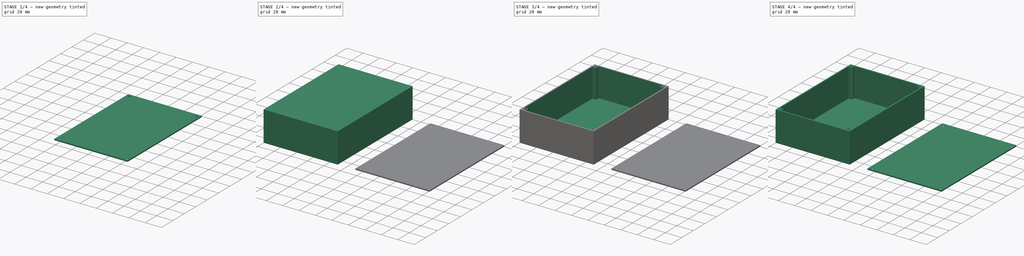
[diagram: build sequence overview — one tinted view per stage of 4, left to right]
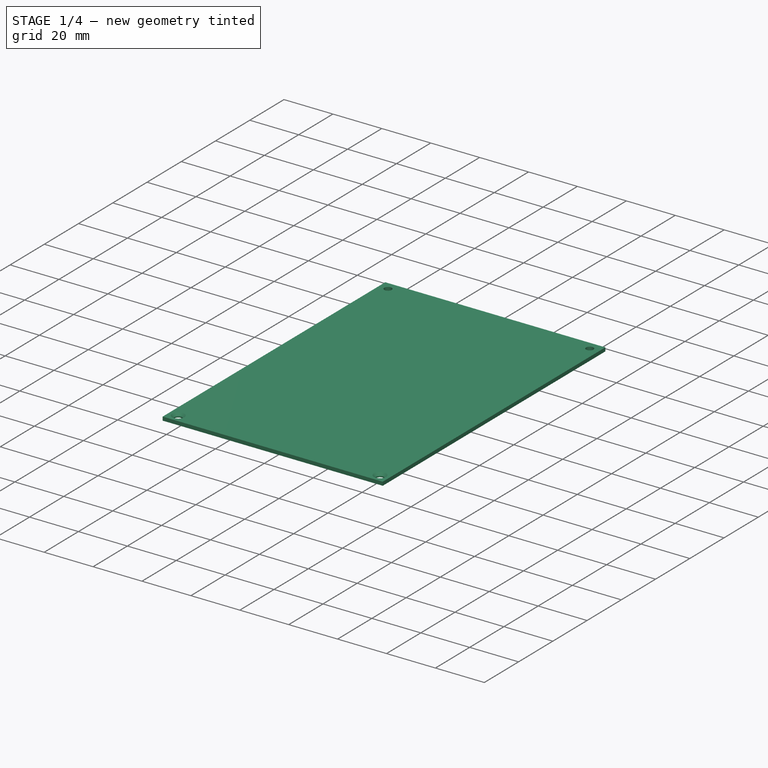
[diagram: stage 1 of 4 — iso view after this stage's code; geometry added in this stage tinted green]
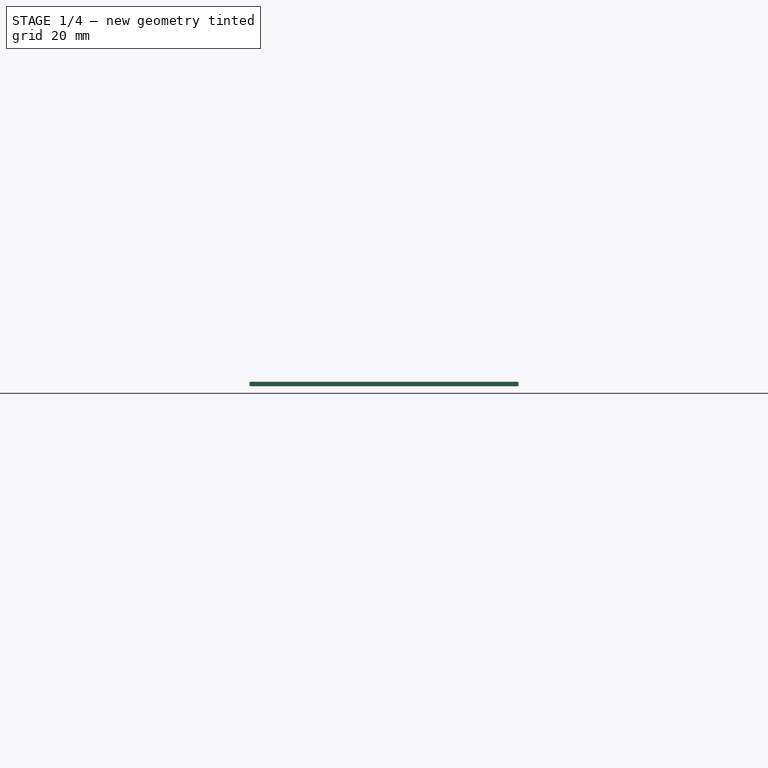
[diagram: stage 1 of 4 — front view after this stage's code; geometry added in this stage tinted green]
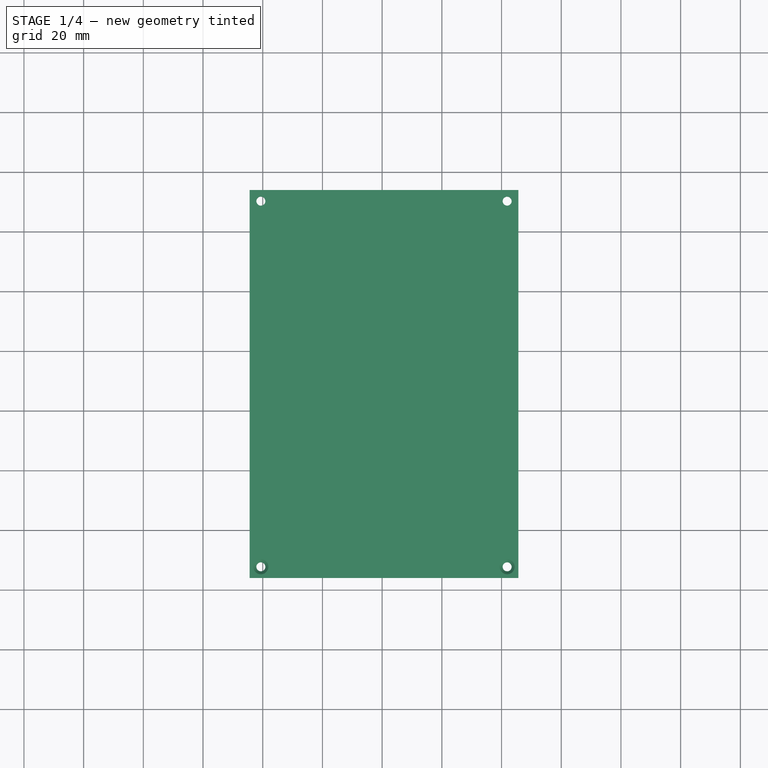
[diagram: stage 1 of 4 — top view after this stage's code; geometry added in this stage tinted green]
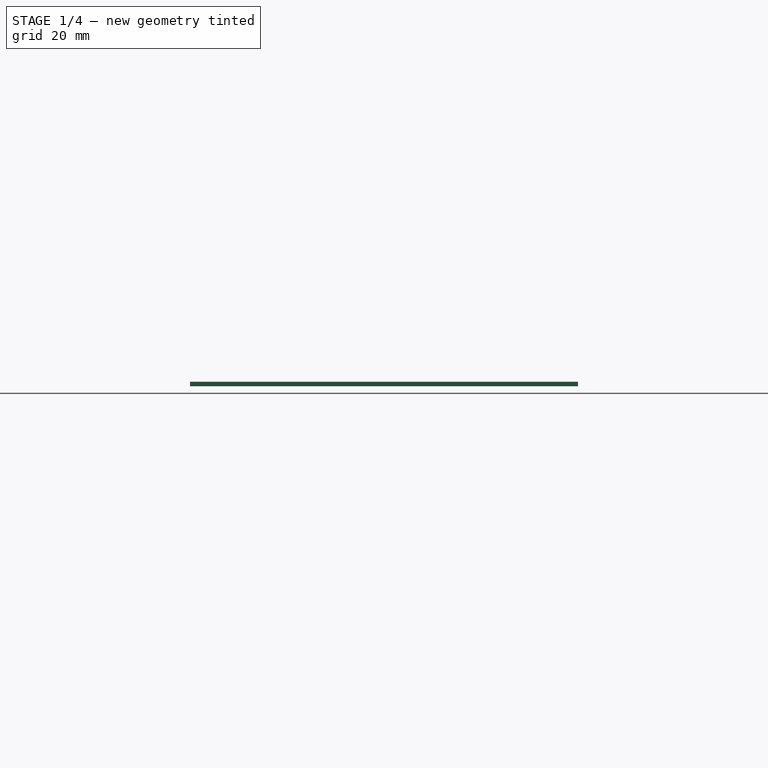
[diagram: stage 1 of 4 — right view after this stage's code; geometry added in this stage tinted green]
FCSTD DOCUMENT  (FreeCAD 0.18R)
Label: parametric.project.box
License: All rights reserved
LicenseURL: http://en.wikipedia.org/wiki/All_rights_reserved
objects: Sketcher::SketchObject×6, PartDesign::Fillet×4, PartDesign::Chamfer×4, PartDesign::Pad×3, PartDesign::Pocket×3, PartDesign::Body×2, Spreadsheet::Sheet×1, App::Part×1
note: 28 computed .brp shape members not serialized (recipe doc carries the construction recipe); baked Part::Feature solids carry a one-line shape summary decoded from their .brp

FEATURE [PartDesign::Body] Body  label="Box"
  Group = -> [Sketch,Pad,Sketch001,Pocket,Sketch002,Pad001,Sketch003,Pocket001,Fillet,Fillet001,Fillet002,Fillet003]
  Origin = -> Origin001
  Tip = -> Fillet003
FEATURE [Sketcher::SketchObject] Sketch004
  MapMode = 5
  Support = -> [XY_Plane002]
  expr: Constraints[9] = params.length
  expr: Constraints[8] = params.width
  sketch-geometry (4):
    g0: LineSegment StartX=75.6227 StartY=34.0285 StartZ=0 EndX=165.623 EndY=34.0285 EndZ=0
    g1: LineSegment StartX=165.623 StartY=34.0285 StartZ=0 EndX=165.623 EndY=-95.9715 EndZ=0
    g2: LineSegment StartX=165.623 StartY=-95.9715 StartZ=0 EndX=75.6227 EndY=-95.9715 EndZ=0
    g3: LineSegment StartX=75.6227 StartY=-95.9715 StartZ=0 EndX=75.6227 EndY=34.0285 EndZ=0
  constraints (10):
    c: Coincident(g0,g1)
    c: Coincident(g1,g2)
    c: Coincident(g2,g3)
    c: Coincident(g3,g0)
    c: Horizontal(g0)
    c: Horizontal(g2)
    c: Vertical(g1)
    c: Vertical(g3)
    c: DistanceX(g2,g2) = 90
    c: DistanceY(g3,g3) = 130
FEATURE [PartDesign::Pad] Pad002
  Length = 1.5
  Length2 = 100
  Profile = -> Sketch004
  Type = 0
  expr: Length = params.body_thickness
FEATURE [Sketcher::SketchObject] Sketch005
  ExternalGeometry = -> [Pad002]
  MapMode = 5
  Placement = pos=(0,0,1.5) rot=(0,0,1;0rad)
  Support = -> [Pad002]
  expr: Constraints[11] = (params.screw_size + params.screw_size * 0.5) / 2 + params.body_thickness
  expr: Constraints[9] = params.screw_size / 2
  expr: Constraints[8] = params.screw_size / 2
  expr: Constraints[7] = (params.screw_size + params.screw_size * 0.5) / 2 + params.body_thickness
  expr: Constraints[6] = (params.screw_size + params.screw_size * 0.5) / 2 + params.body_thickness
  expr: Constraints[4] = (params.screw_size + params.screw_size * 0.5) / 2 + params.body_thickness
  expr: Constraints[3] = params.screw_size / 2
  expr: Constraints[10] = (params.screw_size + params.screw_size * 0.5) / 2 + params.body_thickness
  expr: Constraints[5] = (params.screw_size + params.screw_size * 0.5) / 2 + params.body_thickness
  expr: Constraints[2] = (params.screw_size + params.screw_size * 0.5) / 2 + params.body_thickness
  expr: Constraints[1] = (params.screw_size + params.screw_size * 0.5) / 2 + params.body_thickness
  expr: Constraints[0] = params.screw_size / 2
  sketch-geometry (4):
    g0: Circle CenterX=79.3727 CenterY=30.2785 CenterZ=0 NormalX=0 NormalY=0 NormalZ=1 AngleXU=0 Radius=1.5
    g1: Circle CenterX=79.3727 CenterY=-92.2215 CenterZ=0 NormalX=0 NormalY=0 NormalZ=1 AngleXU=0 Radius=1.5
    g2: Circle CenterX=161.873 CenterY=-92.2215 CenterZ=0 NormalX=0 NormalY=0 NormalZ=1 AngleXU=0 Radius=1.5
    g3: Circle CenterX=161.873 CenterY=30.2785 CenterZ=0 NormalX=0 NormalY=0 NormalZ=1 AngleXU=0 Radius=1.5
  constraints (12):
    c: Radius(g0) = 1.5
    c: DistanceY(g0,g-4) = 3.75
    c: DistanceX(g-4,g0) = 3.75
    c: Radius(g3) = 1.5
    c: DistanceY(g3,g-5) = 3.75
    c: DistanceX(g3,g-5) = 3.75
    c: DistanceX(g-6,g1) = 3.75
    c: DistanceY(g-6,g1) = 3.75
    c: Radius(g1) = 1.5
    c: Radius(g2) = 1.5
    c: DistanceY(g-6,g2) = 3.75
    c: DistanceX(g2,g-6) = 3.75
FEATURE [PartDesign::Pocket] Pocket002
  BaseFeature = -> Pad002
  Length = 1.5
  Length2 = 100
  Profile = -> Sketch005
  Type = 0
  expr: Length = params.body_thickness
FEATURE [PartDesign::Chamfer] Chamfer
  Base = -> Pocket002 [Edge19]
  BaseFeature = -> Pocket002
  Size = 1
FEATURE [PartDesign::Chamfer] Chamfer001
  Base = -> Chamfer [Edge8]
  BaseFeature = -> Chamfer
  Size = 1
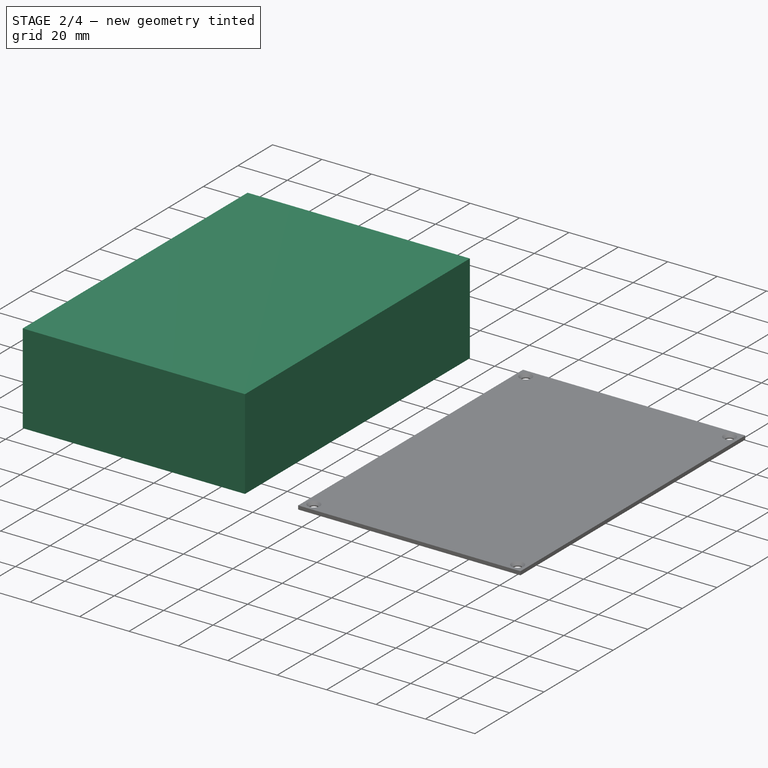
[diagram: stage 2 of 4 — iso view after this stage's code; geometry added in this stage tinted green]
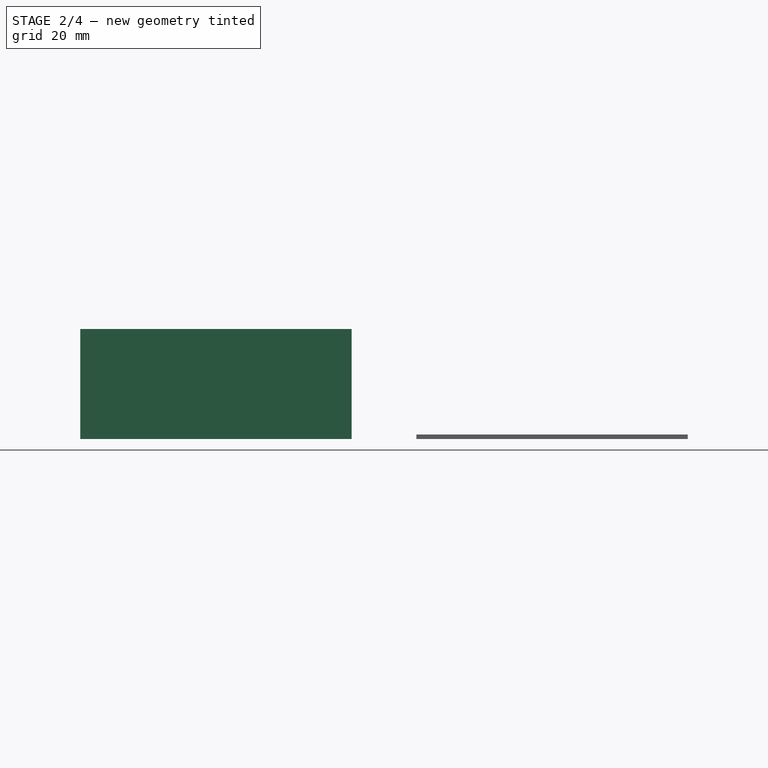
[diagram: stage 2 of 4 — front view after this stage's code; geometry added in this stage tinted green]
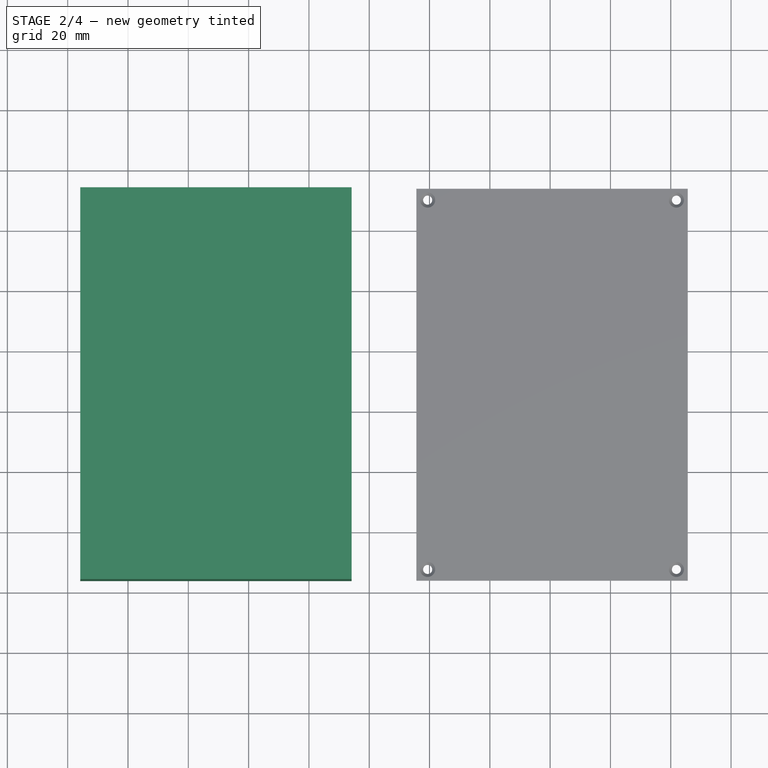
[diagram: stage 2 of 4 — top view after this stage's code; geometry added in this stage tinted green]
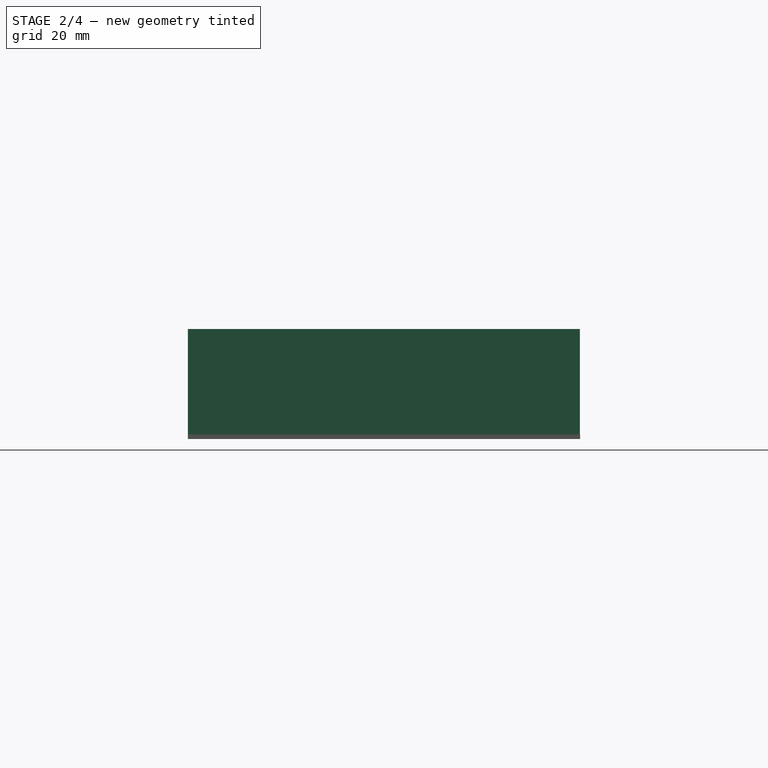
[diagram: stage 2 of 4 — right view after this stage's code; geometry added in this stage tinted green]
FEATURE [Sketcher::SketchObject] Sketch  label="box_footprint"
  MapMode = 5
  Support = -> [XY_Plane001]
  expr: Constraints[9] = params.width
  expr: Constraints[8] = params.length
  sketch-geometry (4):
    g0: LineSegment StartX=-35.8253 StartY=33.9303 StartZ=0 EndX=54.1747 EndY=33.9303 EndZ=0
    g1: LineSegment StartX=54.1747 StartY=33.9303 StartZ=0 EndX=54.1747 EndY=-96.0697 EndZ=0
    g2: LineSegment StartX=54.1747 StartY=-96.0697 StartZ=0 EndX=-35.8253 EndY=-96.0697 EndZ=0
    g3: LineSegment StartX=-35.8253 StartY=-96.0697 StartZ=0 EndX=-35.8253 EndY=33.9303 EndZ=0
  constraints (10):
    c: Coincident(g0,g1)
    c: Coincident(g1,g2)
    c: Coincident(g2,g3)
    c: Coincident(g3,g0)
    c: Horizontal(g0)
    c: Horizontal(g2)
    c: Vertical(g1)
    c: Vertical(g3)
    c: DistanceY(g1,g1) = 130
    c: DistanceX(g0,g0) = 90
FEATURE [Spreadsheet::Sheet] Spreadsheet  label="params"
  cells = A1=body_thickness; B1(body_thickness)=1.5; A2=width; B2(width)=90; A3=length; B3(length)=130; A4=height; B4(height)=35; A5=screw_size; B5(screw_size)=3; A6=screw_length; B6(screw_length)=15
FEATURE [PartDesign::Pad] Pad
  Length = 36.5
  Length2 = 100
  Profile = -> Sketch
  Type = 0
  expr: Length = params.height + params.body_thickness
FEATURE [PartDesign::Chamfer] Chamfer002
  Base = -> Chamfer001 [Edge7]
  BaseFeature = -> Chamfer001
  Size = 1
FEATURE [PartDesign::Chamfer] Chamfer003
  Base = -> Chamfer002 [Edge8]
  BaseFeature = -> Chamfer002
  Size = 1
FEATURE [PartDesign::Body] Body001  label="Lid"
  Group = -> [Sketch004,Pad002,Sketch005,Pocket002,Chamfer,Chamfer001,Chamfer002,Chamfer003]
  Origin = -> Origin002
  Tip = -> Chamfer003
FEATURE [App::Part] Part
  Group = -> [Body,Body001]
  Origin = -> Origin
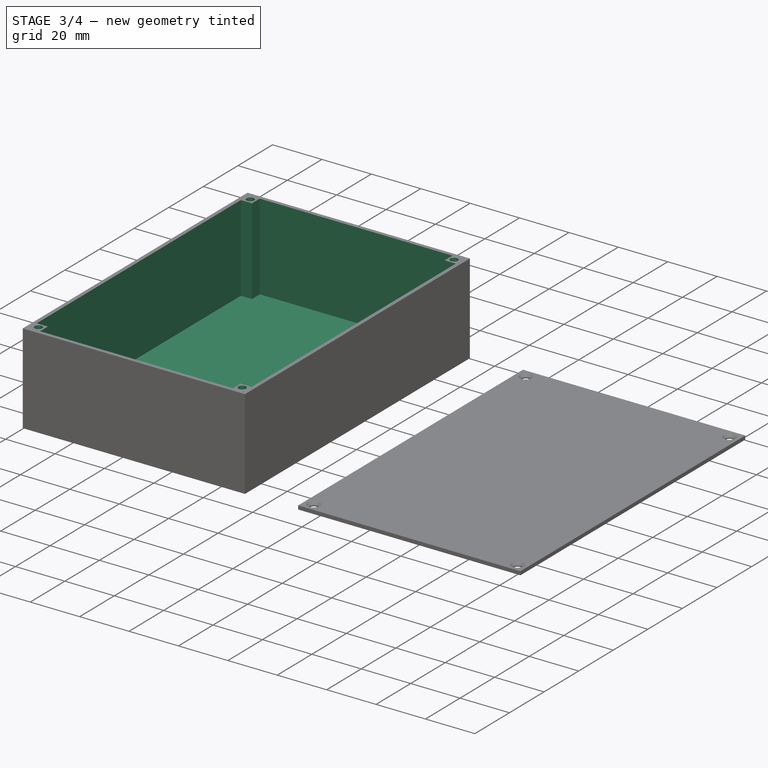
[diagram: stage 3 of 4 — iso view after this stage's code; geometry added in this stage tinted green]
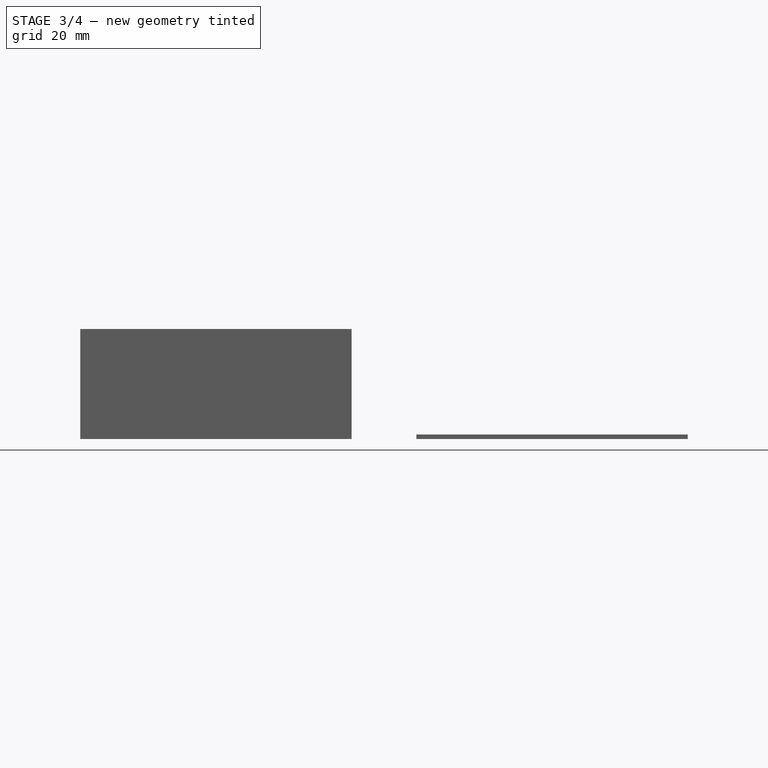
[diagram: stage 3 of 4 — front view after this stage's code; geometry added in this stage tinted green]
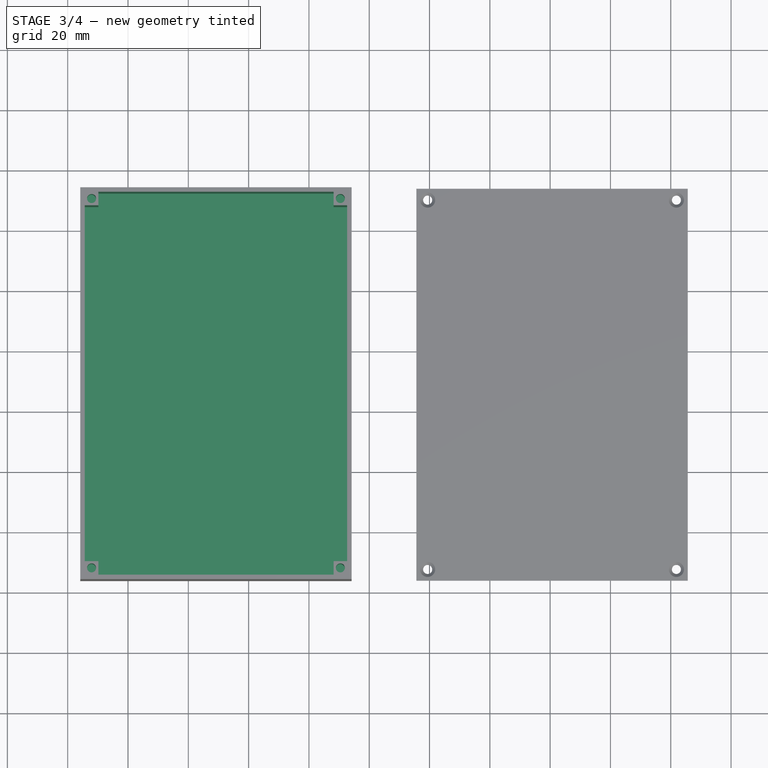
[diagram: stage 3 of 4 — top view after this stage's code; geometry added in this stage tinted green]
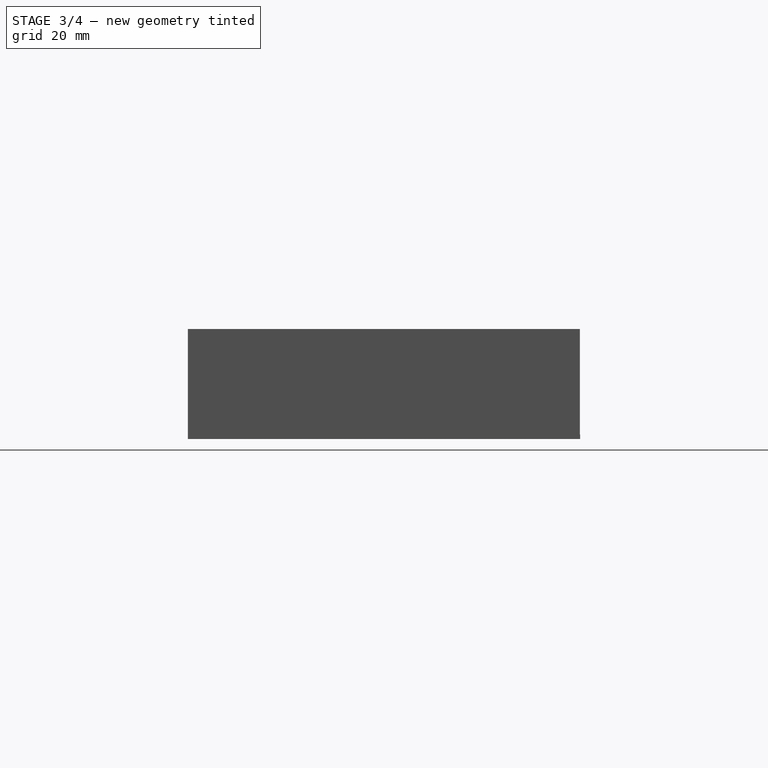
[diagram: stage 3 of 4 — right view after this stage's code; geometry added in this stage tinted green]
FEATURE [Sketcher::SketchObject] Sketch001
  ExternalGeometry = -> [Pad]
  MapMode = 5
  Placement = pos=(0,0,36.5) rot=(0,0,1;0rad)
  Support = -> [Pad]
  expr: Constraints[11] = params.body_thickness
  expr: Constraints[10] = params.body_thickness
  expr: Constraints[9] = params.body_thickness
  expr: Constraints[8] = params.body_thickness
  sketch-geometry (4):
    g0: LineSegment StartX=-34.3253 StartY=32.4303 StartZ=0 EndX=52.6747 EndY=32.4303 EndZ=0
    g1: LineSegment StartX=52.6747 StartY=32.4303 StartZ=0 EndX=52.6747 EndY=-94.5697 EndZ=0
    g2: LineSegment StartX=52.6747 StartY=-94.5697 StartZ=0 EndX=-34.3253 EndY=-94.5697 EndZ=0
    g3: LineSegment StartX=-34.3253 StartY=-94.5697 StartZ=0 EndX=-34.3253 EndY=32.4303 EndZ=0
  constraints (12):
    c: Coincident(g0,g1)
    c: Coincident(g1,g2)
    c: Coincident(g2,g3)
    c: Coincident(g3,g0)
    c: Horizontal(g0)
    c: Horizontal(g2)
    c: Vertical(g1)
    c: Vertical(g3)
    c: DistanceX(g1,g-6) = 1.5
    c: DistanceY(g-6,g1) = 1.5
    c: DistanceX(g-4,g0) = 1.5
    c: DistanceY(g0,g-4) = 1.5
FEATURE [PartDesign::Pocket] Pocket
  BaseFeature = -> Pad
  Length = 35
  Length2 = 100
  Profile = -> Sketch001
  Type = 0
  expr: Length = params.height
FEATURE [Sketcher::SketchObject] Sketch002
  ExternalGeometry = -> [Pocket]
  MapMode = 5
  Placement = pos=(0,0,1.5) rot=(0,0,1;0rad)
  Support = -> [Pocket]
  expr: Constraints[47] = params.body_thickness
  expr: Constraints[46] = params.body_thickness
  expr: Constraints[43] = params.body_thickness
  expr: Constraints[42] = params.screw_size + params.screw_size * 0.5
  expr: Constraints[41] = params.screw_size + params.screw_size * 0.5
  expr: Constraints[22] = params.screw_size + params.screw_size * 0.5
  expr: Constraints[9] = params.body_thickness
  expr: Constraints[23] = params.screw_size + params.screw_size * 0.5
  expr: Constraints[21] = params.body_thickness
  expr: Constraints[44] = params.body_thickness
  expr: Constraints[8] = params.body_thickness
  expr: Constraints[45] = params.screw_size + params.screw_size * 0.5
  expr: Constraints[20] = params.body_thickness
  expr: Constraints[11] = params.screw_size + params.screw_size * 0.5
  expr: Constraints[10] = params.screw_size + params.screw_size * 0.5
  expr: Constraints[40] = params.screw_size + params.screw_size * 0.5
  sketch-geometry (16):
    g0: LineSegment StartX=-29.8253 StartY=-94.5697 StartZ=0 EndX=-34.3253 EndY=-94.5697 EndZ=0
    g1: LineSegment StartX=-34.3253 StartY=-94.5697 StartZ=0 EndX=-34.3253 EndY=-90.0697 EndZ=0
    g2: LineSegment StartX=-34.3253 StartY=-90.0697 StartZ=0 EndX=-29.8253 EndY=-90.0697 EndZ=0
    g3: LineSegment StartX=-29.8253 StartY=-90.0697 StartZ=0 EndX=-29.8253 EndY=-94.5697 EndZ=0
    g4: LineSegment StartX=48.1747 StartY=-90.0697 StartZ=0 EndX=52.6747 EndY=-90.0697 EndZ=0
    g5: LineSegment StartX=52.6747 StartY=-90.0697 StartZ=0 EndX=52.6747 EndY=-94.5697 EndZ=0
    g6: LineSegment StartX=52.6747 StartY=-94.5697 StartZ=0 EndX=48.1747 EndY=-94.5697 EndZ=0
    g7: LineSegment StartX=48.1747 StartY=-94.5697 StartZ=0 EndX=48.1747 EndY=-90.0697 EndZ=0
    g8: LineSegment StartX=48.1747 StartY=32.4303 StartZ=0 EndX=52.6747 EndY=32.4303 EndZ=0
    g9: LineSegment StartX=52.6747 StartY=32.4303 StartZ=0 EndX=52.6747 EndY=27.9303 EndZ=0
    g10: LineSegment StartX=52.6747 StartY=27.9303 StartZ=0 EndX=48.1747 EndY=27.9303 EndZ=0
    g11: LineSegment StartX=48.1747 StartY=27.9303 StartZ=0 EndX=48.1747 EndY=32.4303 EndZ=0
    g12: LineSegment StartX=-34.3253 StartY=32.4303 StartZ=0 EndX=-29.8253 EndY=32.4303 EndZ=0
    g13: LineSegment StartX=-29.8253 StartY=32.4303 StartZ=0 EndX=-29.8253 EndY=27.9303 EndZ=0
    g14: LineSegment StartX=-29.8253 StartY=27.9303 StartZ=0 EndX=-34.3253 EndY=27.9303 EndZ=0
    g15: LineSegment StartX=-34.3253 StartY=27.9303 StartZ=0 EndX=-34.3253 EndY=32.4303 EndZ=0
  constraints (48):
    c: Coincident(g0,g1)
    c: Coincident(g1,g2)
    c: Coincident(g2,g3)
    c: Coincident(g3,g0)
    c: Horizontal(g0)
    c: Horizontal(g2)
    c: Vertical(g1)
    c: Vertical(g3)
    c: DistanceX(g-6,g0) = 1.5
    c: DistanceY(g-6,g0) = 1.5
    c: DistanceY(g3,g3) = 4.5
    c: DistanceX(g2,g2) = 4.5
    c: Coincident(g4,g5)
    c: Coincident(g5,g6)
    c: Coincident(g6,g7)
    c: Coincident(g7,g4)
    c: Horizontal(g4)
    c: Horizontal(g6)
    c: Vertical(g5)
    c: Vertical(g7)
    c: DistanceX(g5,g-6) = 1.5
    c: DistanceY(g-6,g5) = 1.5
    c: DistanceY(g7,g7) = 4.5
    c: DistanceX(g4,g4) = 4.5
    c: Coincident(g8,g9)
    c: Coincident(g9,g10)
    c: Coincident(g10,g11)
    c: Coincident(g11,g8)
    c: Horizontal(g8)
    c: Horizontal(g10)
    c: Vertical(g9)
    c: Vertical(g11)
    c: Coincident(g12,g13)
    c: Coincident(g13,g14)
    c: Coincident(g14,g15)
    c: Coincident(g15,g12)
    c: Horizontal(g12)
    c: Horizontal(g14)
    c: Vertical(g13)
    c: Vertical(g15)
    c: DistanceY(g11,g11) = 4.5
    c: DistanceX(g14,g14) = 4.5
    c: DistanceY(g13,g13) = 4.5
    c: DistanceX(g-4,g12) = 1.5
    c: DistanceY(g12,g-4) = 1.5
    c: DistanceX(g10,g10) = 4.5
    c: DistanceY(g8,g-5) = 1.5
    c: DistanceX(g8,g-5) = 1.5
FEATURE [PartDesign::Pad] Pad001
  BaseFeature = -> Pocket
  Length = 35
  Length2 = 100
  Profile = -> Sketch002
  Type = 0
  expr: Length = params.height
FEATURE [Sketcher::SketchObject] Sketch003
  ExternalGeometry = -> [Pad001]
  MapMode = 5
  Placement = pos=(0,0,36.5) rot=(0,0,1;0rad)
  Support = -> [Pad001]
  expr: Constraints[11] = (params.screw_size + params.screw_size * 0.5) / 2
  expr: Constraints[9] = params.screw_size / 2
  expr: Constraints[8] = params.screw_size / 2
  expr: Constraints[7] = (params.screw_size + params.screw_size * 0.5) / 2
  expr: Constraints[6] = (params.screw_size + params.screw_size * 0.5) / 2
  expr: Constraints[4] = (params.screw_size + params.screw_size * 0.5) / 2
  expr: Constraints[3] = params.screw_size / 2
  expr: Constraints[10] = (params.screw_size + params.screw_size * 0.5) / 2
  expr: Constraints[5] = (params.screw_size + params.screw_size * 0.5) / 2
  expr: Constraints[2] = (params.screw_size + params.screw_size * 0.5) / 2
  expr: Constraints[1] = (params.screw_size + params.screw_size * 0.5) / 2
  expr: Constraints[0] = params.screw_size / 2
  sketch-geometry (4):
    g0: Circle CenterX=50.4247 CenterY=30.1803 CenterZ=0 NormalX=0 NormalY=0 NormalZ=1 AngleXU=0 Radius=1.5
    g1: Circle CenterX=-32.0753 CenterY=30.1803 CenterZ=0 NormalX=0 NormalY=0 NormalZ=1 AngleXU=0 Radius=1.5
    g2: Circle CenterX=-32.0753 CenterY=-92.3197 CenterZ=0 NormalX=0 NormalY=0 NormalZ=1 AngleXU=0 Radius=1.5
    g3: Circle CenterX=50.4247 CenterY=-92.3197 CenterZ=0 NormalX=0 NormalY=0 NormalZ=1 AngleXU=0 Radius=1.5
  constraints (12):
    c: Radius(g0) = 1.5
    c: DistanceY(g0,g-6) = 2.25
    c: DistanceX(g0,g-6) = 2.25
    c: Radius(g1) = 1.5
    c: DistanceX(g-10,g1) = 2.25
    c: DistanceY(g1,g-10) = 2.25
    c: DistanceX(g3,g-18) = 2.25
    c: DistanceY(g-18,g3) = 2.25
    c: Radius(g3) = 1.5
    c: Radius(g2) = 1.5
    c: DistanceX(g-13,g2) = 2.25
    c: DistanceY(g-13,g2) = 2.25
FEATURE [PartDesign::Pocket] Pocket001
  BaseFeature = -> Pad001
  Length = 15
  Length2 = 100
  Profile = -> Sketch003
  Type = 0
  expr: Length = params.screw_length
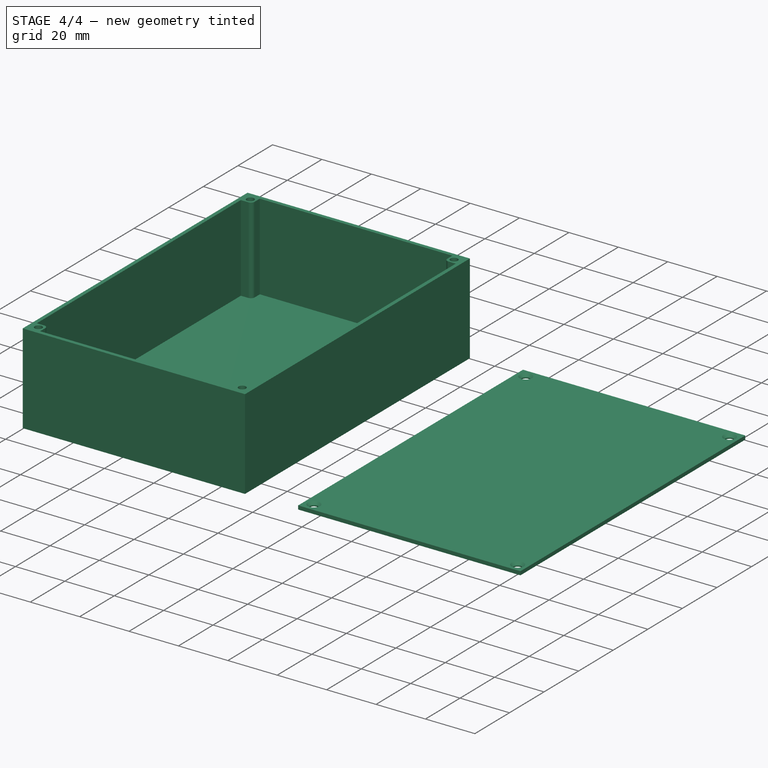
[diagram: stage 4 of 4 — iso view after this stage's code; geometry added in this stage tinted green]
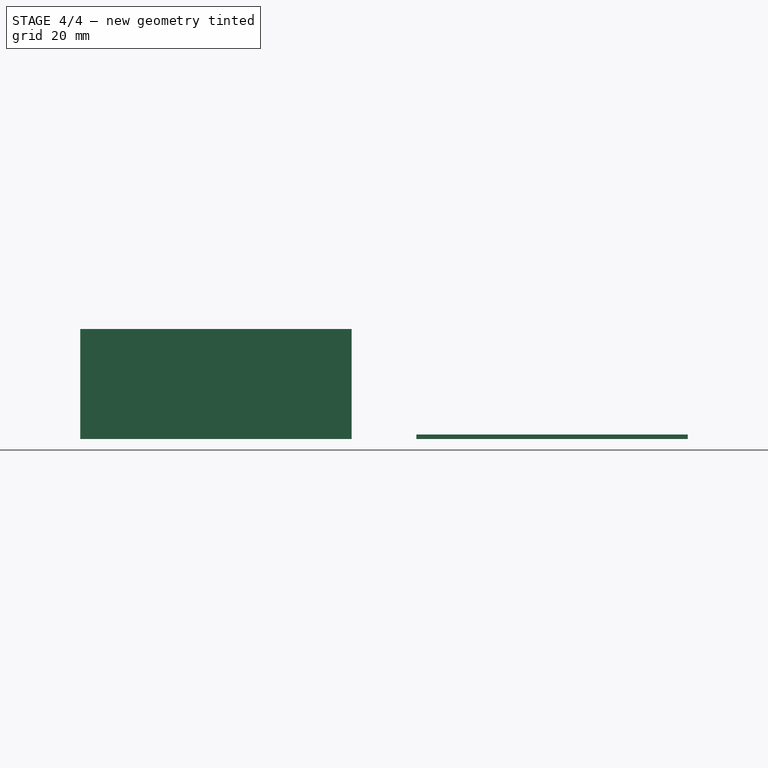
[diagram: stage 4 of 4 — front view after this stage's code; geometry added in this stage tinted green]
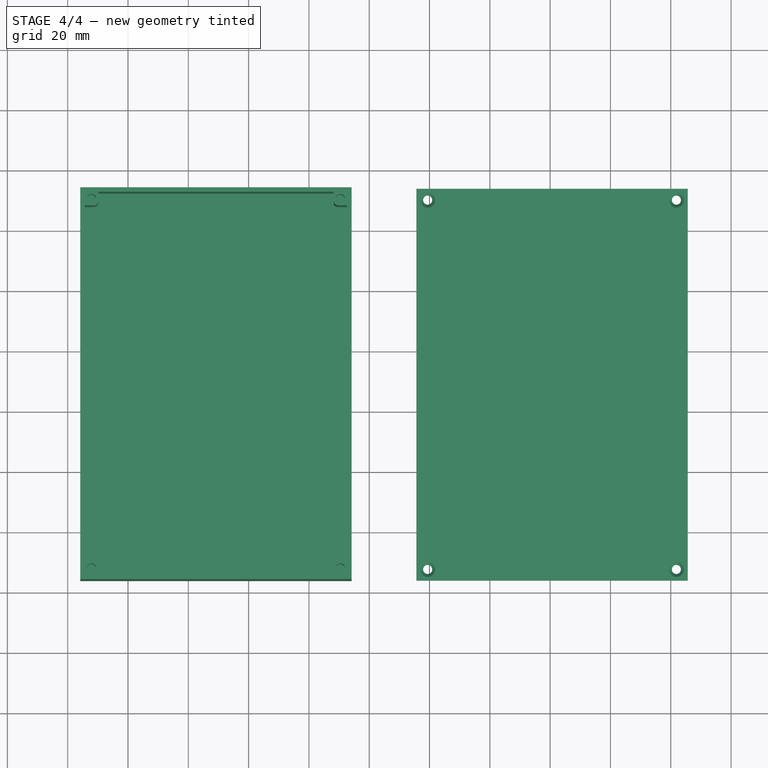
[diagram: stage 4 of 4 — top view after this stage's code; geometry added in this stage tinted green]
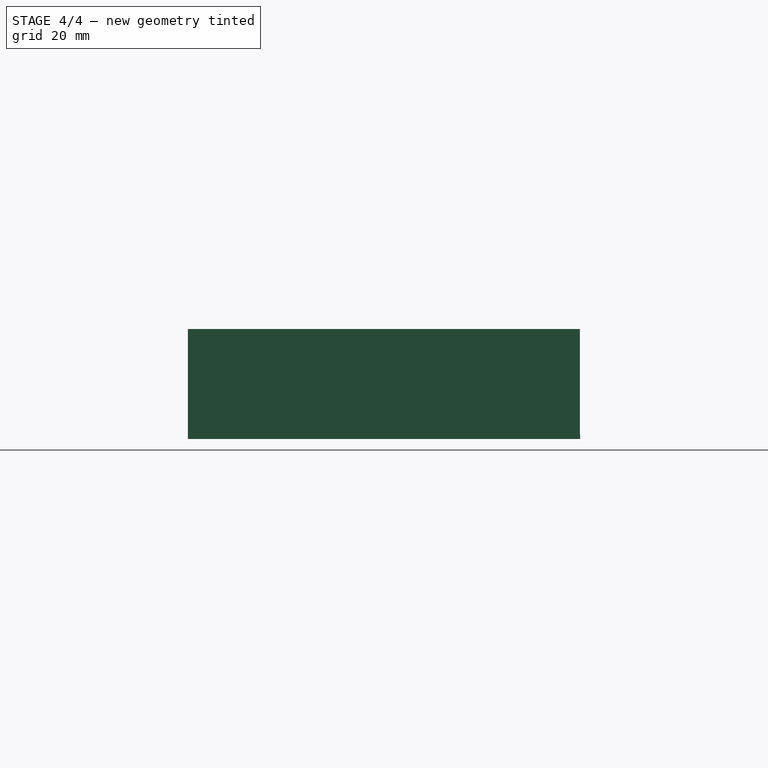
[diagram: stage 4 of 4 — right view after this stage's code; geometry added in this stage tinted green]
FEATURE [PartDesign::Fillet] Fillet
  Base = -> Pocket001 [Edge66]
  BaseFeature = -> Pocket001
  Radius = 1.5
  expr: Radius = params.screw_size / 2
FEATURE [PartDesign::Fillet] Fillet001
  Base = -> Fillet [Edge64]
  BaseFeature = -> Fillet
  Radius = 1.5
  expr: Radius = params.screw_size / 2
FEATURE [PartDesign::Fillet] Fillet002
  Base = -> Fillet001 [Edge40]
  BaseFeature = -> Fillet001
  Radius = 1.5
  expr: Radius = params.screw_size / 2
FEATURE [PartDesign::Fillet] Fillet003
  Base = -> Fillet002 [Edge31]
  BaseFeature = -> Fillet002
  Radius = 1.5
  expr: Radius = params.screw_size / 2
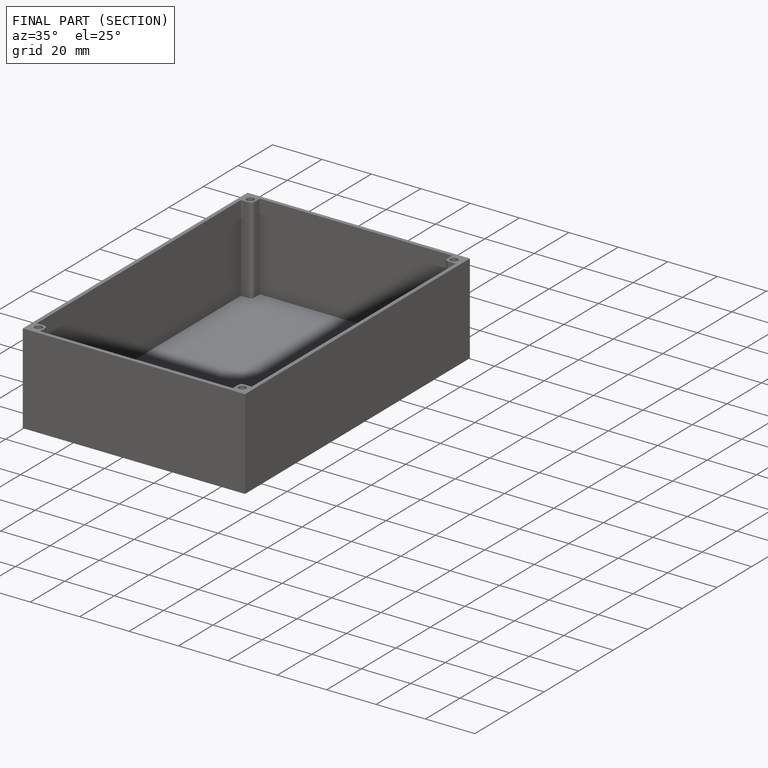
[diagram: finished part — half-section view (interior)]
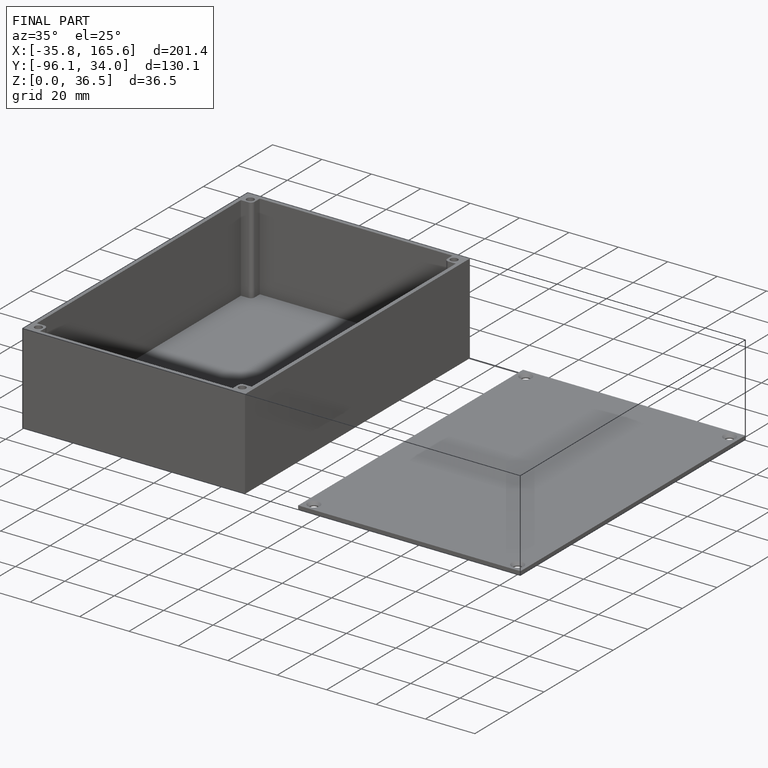
[diagram: finished part — iso view with bounding-box wireframe]
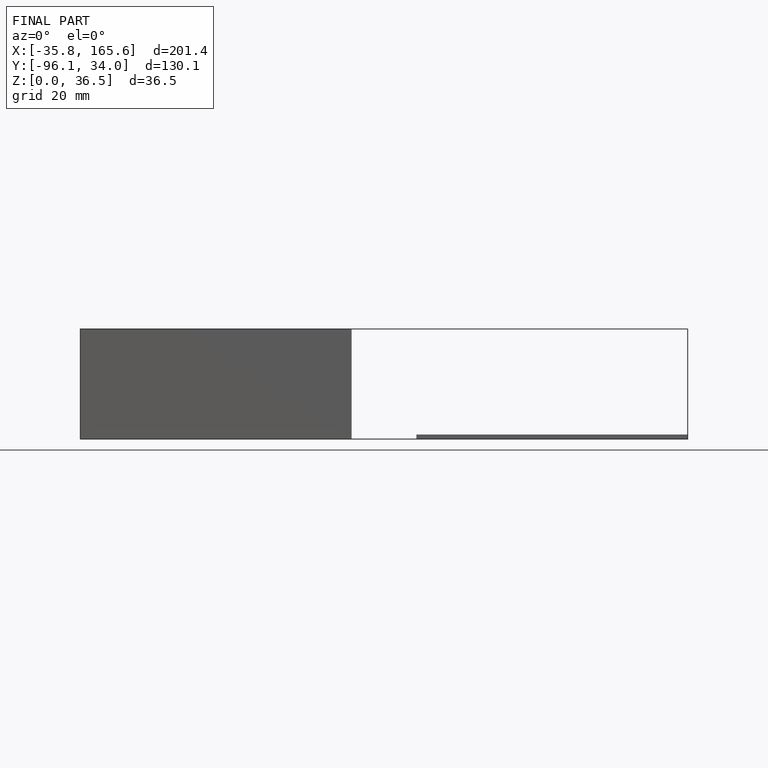
[diagram: finished part — front view with bounding-box wireframe]
